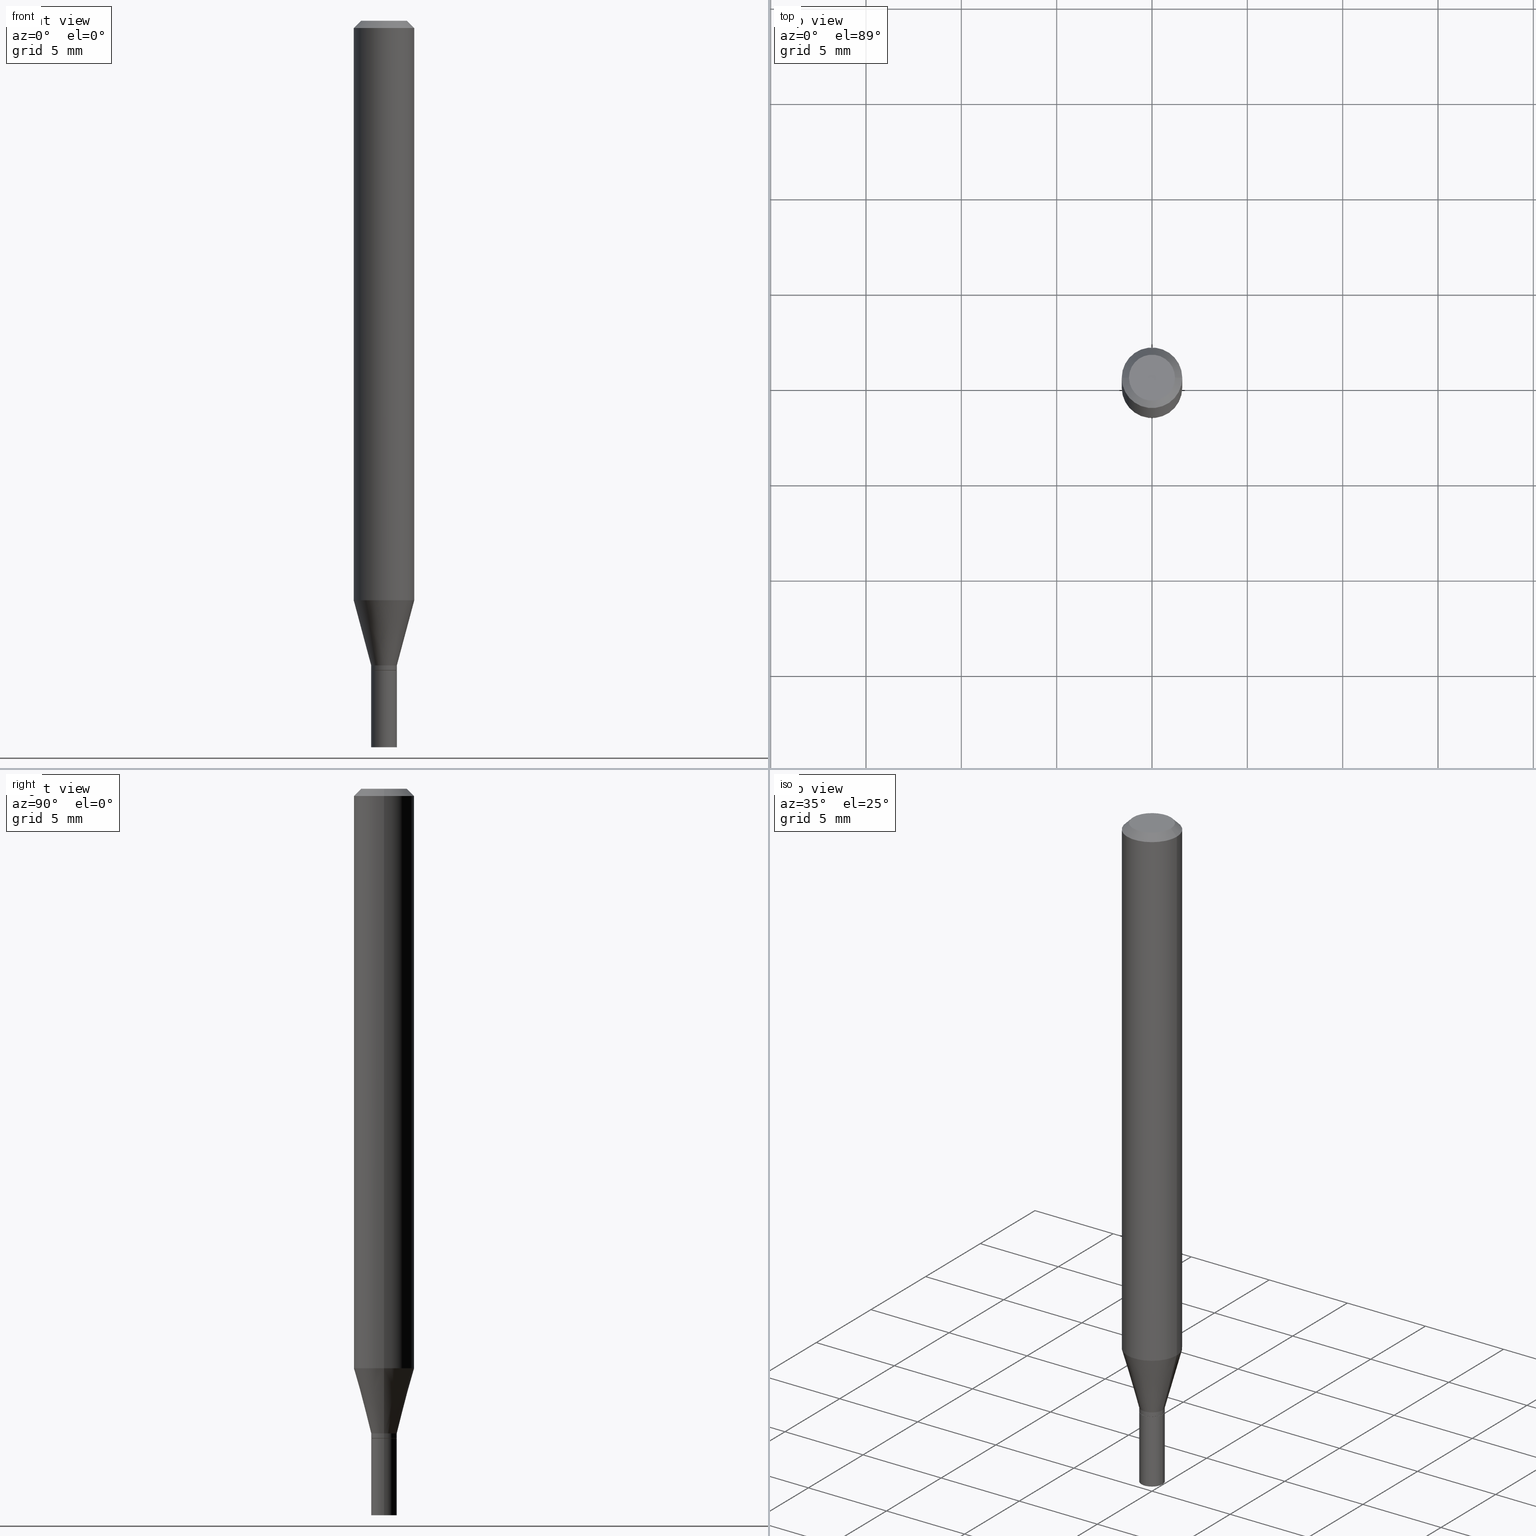
[diagram: canonical four-view strip — front | top / right | iso, engineering-drawing reading convention]
A machine part, canonical four-view strip (front | top / right | iso — engineering-drawing reading convention). The complete STEP part file that produces these views, byte-faithful:
ISO-10303-21;
HEADER;
FILE_DESCRIPTION (( 'STEP AP203' ),
    '1' );
FILE_NAME ('02448.STEP',
    '2024-03-18T20:39:29',
    ( '' ),
    ( '' ),
    'SwSTEP 2.0',
    'SolidWorks 2023',
    '' );
FILE_SCHEMA (( 'CONFIG_CONTROL_DESIGN' ));
ENDSEC;

DATA;
#1 = ORIENTED_EDGE ( 'NONE', *, *, #428, .T. ) ;
#2 =( LENGTH_UNIT ( ) NAMED_UNIT ( * ) SI_UNIT ( $, .METRE. ) );
#3 = ORGANIZATION ( 'UNSPECIFIED', 'UNSPECIFIED', '' ) ;
#4 = DATE_AND_TIME ( #184, #181 ) ;
#5 = ADVANCED_FACE ( 'NONE', ( #290 ), #124, .T. ) ;
#6 = CARTESIAN_POINT ( 'NONE',  ( 0.02649999999999992639, -4.832210172958911994E-15, -1.331000000000000183 ) ) ;
#7 = LINE ( 'NONE', #407, #211 ) ;
#8 = ADVANCED_FACE ( 'NONE', ( #171 ), #186, .T. ) ;
#9 = LINE ( 'NONE', #81, #427 ) ;
#10 = AXIS2_PLACEMENT_3D ( 'NONE', #141, #282, #102 ) ;
#11 = COORDINATED_UNIVERSAL_TIME_OFFSET ( 5, 0, .BEHIND. ) ;
#12 = CARTESIAN_POINT ( 'NONE',  ( 0.000000000000000000, 0.000000000000000000, 0.000000000000000000 ) ) ;
#13 = PRODUCT ( '02448', '02448', '', ( #104 ) ) ;
#14 = CONICAL_SURFACE ( 'NONE', #39, 0.02649999999999992639, 0.2617993877991499074 ) ;
#15 = UNCERTAINTY_MEASURE_WITH_UNIT (LENGTH_MEASURE( 1.000000000000000082E-05 ), #259, 'distance_accuracy_value', 'NONE');
#16 = FACE_OUTER_BOUND ( 'NONE', #42, .T. ) ;
#17 = APPROVAL_STATUS ( 'not_yet_approved' ) ;
#18 = LINE ( 'NONE', #367, #363 ) ;
#19 = ADVANCED_FACE ( 'NONE', ( #198 ), #43, .T. ) ;
#20 = DIRECTION ( 'NONE',  ( 1.000000000000000000, -6.982962677686266711E-15, 4.876176775795935793E-29 ) ) ;
#21 = AXIS2_PLACEMENT_3D ( 'NONE', #266, #361, #115 ) ;
#22 = DIRECTION ( 'NONE',  ( -2.445468806185136597E-29, 3.491481338843145583E-15, 1.000000000000000000 ) ) ;
#23 = DIRECTION ( 'NONE',  ( 1.000000000000000000, -6.982962677686261189E-15, 0.000000000000000000 ) ) ;
#24 = PERSON_AND_ORGANIZATION_ROLE ( 'creator' ) ;
#25 = CARTESIAN_POINT ( 'NONE',  ( 0.06250000000000000000, -4.888073874380388472E-16, -0.01499999999999999944 ) ) ;
#26 = CYLINDRICAL_SURFACE ( 'NONE', #40, 0.06250000000000000000 ) ;
#27 = CARTESIAN_POINT ( 'NONE',  ( 0.02649999999999992639, -1.850485109586855413E-16, 1.292186845585919279E-30 ) ) ;
#28 = CARTESIAN_POINT ( 'NONE',  ( 0.06250000000000000000, -4.614502942346933576E-15, -1.196646170927520458 ) ) ;
#29 = CIRCLE ( 'NONE', #287, 0.06250000000000000000 ) ;
#30 = VERTEX_POINT ( 'NONE', #202 ) ;
#31 = CIRCLE ( 'NONE', #242, 0.02599999999999999534 ) ;
#32 = ORIENTED_EDGE ( 'NONE', *, *, #309, .F. ) ;
#33 = ORIENTED_EDGE ( 'NONE', *, *, #309, .T. ) ;
#34 = VERTEX_POINT ( 'NONE', #310 ) ;
#35 = ORIENTED_EDGE ( 'NONE', *, *, #391, .F. ) ;
#36 = DIRECTION ( 'NONE',  ( -2.445468806185136597E-29, 3.491481338843145583E-15, 1.000000000000000000 ) ) ;
#37 = VERTEX_POINT ( 'NONE', #25 ) ;
#38 = EDGE_LOOP ( 'NONE', ( #465, #226, #93, #32 ) ) ;
#39 = AXIS2_PLACEMENT_3D ( 'NONE', #353, #222, #217 ) ;
#40 = AXIS2_PLACEMENT_3D ( 'NONE', #249, #307, #374 ) ;
#41 = VERTEX_POINT ( 'NONE', #298 ) ;
#42 = EDGE_LOOP ( 'NONE', ( #394, #258, #35, #322 ) ) ;
#43 = CONICAL_SURFACE ( 'NONE', #345, 0.02599999999999999534, 0.7853981633974739252 ) ;
#44 = AXIS2_PLACEMENT_3D ( 'NONE', #151, #438, #443 ) ;
#45 = CYLINDRICAL_SURFACE ( 'NONE', #243, 0.02649999999999999925 ) ;
#46 = PRODUCT_DEFINITION_SHAPE ( 'NONE', 'NONE',  #153 ) ;
#47 = CYLINDRICAL_SURFACE ( 'NONE', #433, 0.02649999999999999925 ) ;
#48 = DIRECTION ( 'NONE',  ( 1.000000000000000000, -6.982962677686258822E-15, 0.000000000000000000 ) ) ;
#49 = CARTESIAN_POINT ( 'NONE',  ( -3.350520365439544480E-45, 4.783655101941405986E-31, 1.370093274943982539E-16 ) ) ;
#50 = DIRECTION ( 'NONE',  ( 1.000000000000000000, -6.982962677686265922E-15, 4.876176775795935232E-29 ) ) ;
#51 = COORDINATED_UNIVERSAL_TIME_OFFSET ( 5, 0, .BEHIND. ) ;
#52 = CC_DESIGN_SECURITY_CLASSIFICATION ( #224, ( #295 ) ) ;
#53 = DIRECTION ( 'NONE',  ( 1.000000000000000000, -6.982962677686260400E-15, 0.000000000000000000 ) ) ;
#54 = DIRECTION ( 'NONE',  ( -2.438088387897960049E-29, 3.491481338843145188E-15, 1.000000000000000000 ) ) ;
#55 = EDGE_CURVE ( 'NONE', #30, #429, #300, .T. ) ;
#56 = DIRECTION ( 'NONE',  ( 1.000000000000000000, -6.982962677686265922E-15, 4.876176775795935793E-29 ) ) ;
#57 = DIRECTION ( 'NONE',  ( -1.000000000000000000, 6.982962677686266711E-15, 0.000000000000000000 ) ) ;
#58 = DIRECTION ( 'NONE',  ( -1.000000000000000000, 6.982962677686265922E-15, -4.876176775795935793E-29 ) ) ;
#59 = CARTESIAN_POINT ( 'NONE',  ( -0.02649999999999999925, 1.882938249764265439E-16, -1.303517798917549926E-30 ) ) ;
#60 = APPROVAL_STATUS ( 'not_yet_approved' ) ;
#61 = DIRECTION ( 'NONE',  ( -2.445468806185136597E-29, 3.491481338843145583E-15, 1.000000000000000000 ) ) ;
#62 = CARTESIAN_POINT ( 'NONE',  ( 3.279373669094269136E-29, -4.682076475388659531E-15, -1.341000000000000192 ) ) ;
#63 = AXIS2_PLACEMENT_3D ( 'NONE', #343, #447, #247 ) ;
#64 = CARTESIAN_POINT ( 'NONE',  ( 3.279373669094269136E-29, -4.682076475388659531E-15, -1.341000000000000192 ) ) ;
#65 = DIRECTION ( 'NONE',  ( -2.445468806185136597E-29, 3.491481338843145583E-15, 1.000000000000000000 ) ) ;
#66 = CC_DESIGN_DATE_AND_TIME_ASSIGNMENT ( #168, #416, ( #153 ) ) ;
#67 = ORIENTED_EDGE ( 'NONE', *, *, #301, .F. ) ;
#68 = EDGE_CURVE ( 'NONE', #116, #399, #29, .T. ) ;
#69 = CARTESIAN_POINT ( 'NONE',  ( 3.279373669094269136E-29, -4.682076475388659531E-15, -1.341000000000000192 ) ) ;
#70 = CIRCLE ( 'NONE', #195, 0.04749999999999999362 ) ;
#71 = EDGE_LOOP ( 'NONE', ( #299, #67 ) ) ;
#72 = EDGE_CURVE ( 'NONE', #429, #220, #159, .T. ) ;
#73 = ORIENTED_EDGE ( 'NONE', *, *, #55, .F. ) ;
#74 = VERTEX_POINT ( 'NONE', #269 ) ;
#75 = ORIENTED_EDGE ( 'NONE', *, *, #444, .F. ) ;
#76 = ORIENTED_EDGE ( 'NONE', *, *, #409, .F. ) ;
#77 = AXIS2_PLACEMENT_3D ( 'NONE', #237, #170, #454 ) ;
#78 =( GEOMETRIC_REPRESENTATION_CONTEXT ( 3 ) GLOBAL_UNCERTAINTY_ASSIGNED_CONTEXT ( ( #15 ) ) GLOBAL_UNIT_ASSIGNED_CONTEXT ( ( #259, #327, #406 ) ) REPRESENTATION_CONTEXT ( 'NONE', 'WORKASPACE' ) );
#79 = DIRECTION ( 'NONE',  ( -2.445468806185136877E-29, 3.491481338843145188E-15, 1.000000000000000000 ) ) ;
#80 = DIRECTION ( 'NONE',  ( -2.445468806185136597E-29, 3.491481338843145583E-15, 1.000000000000000000 ) ) ;
#81 = CARTESIAN_POINT ( 'NONE',  ( 0.06250000000000000000, -4.811533449433679005E-16, -0.01499999999999999944 ) ) ;
#82 = AXIS2_PLACEMENT_3D ( 'NONE', #176, #426, #23 ) ;
#83 = APPROVAL_STATUS ( 'not_yet_approved' ) ;
#84 = FACE_OUTER_BOUND ( 'NONE', #435, .T. ) ;
#85 = DIRECTION ( 'NONE',  ( -2.445468806185136597E-29, 3.491481338843145583E-15, 1.000000000000000000 ) ) ;
#86 = CARTESIAN_POINT ( 'NONE',  ( 0.000000000000000000, 0.000000000000000000, 0.000000000000000000 ) ) ;
#87 = EDGE_CURVE ( 'NONE', #108, #349, #450, .T. ) ;
#88 = PERSON_AND_ORGANIZATION ( #137, #3 ) ;
#89 = ADVANCED_FACE ( 'NONE', ( #419 ), #371, .T. ) ;
#90 = AXIS2_PLACEMENT_3D ( 'NONE', #240, #364, #94 ) ;
#91 = VECTOR ( 'NONE', #380, 39.37007874015748143 ) ;
#92 = PERSON_AND_ORGANIZATION ( #137, #3 ) ;
#93 = ORIENTED_EDGE ( 'NONE', *, *, #232, .T. ) ;
#94 = DIRECTION ( 'NONE',  ( 1.000000000000000000, -6.982962677686258822E-15, 0.000000000000000000 ) ) ;
#95 = PERSON_AND_ORGANIZATION ( #137, #3 ) ;
#96 = SHAPE_DEFINITION_REPRESENTATION ( #46, #330 ) ;
#97 = ADVANCED_FACE ( 'NONE', ( #378 ), #410, .T. ) ;
#98 = PLANE ( 'NONE',  #442 ) ;
#99 = CARTESIAN_POINT ( 'NONE',  ( -3.350520365439544480E-45, 4.783655101941405986E-31, 1.370093274943982539E-16 ) ) ;
#100 = DIRECTION ( 'NONE',  ( -2.445468806185136877E-29, 3.491481338843145188E-15, 1.000000000000000000 ) ) ;
#101 = PLANE ( 'NONE',  #362 ) ;
#102 = DIRECTION ( 'NONE',  ( -1.000000000000000000, 6.982962677686265922E-15, -4.876176775795935793E-29 ) ) ;
#103 = VECTOR ( 'NONE', #144, 39.37007874015748143 ) ;
#104 = MECHANICAL_CONTEXT ( 'NONE', #160, 'mechanical' ) ;
#105 = ORIENTED_EDGE ( 'NONE', *, *, #55, .T. ) ;
#106 = ORIENTED_EDGE ( 'NONE', *, *, #391, .T. ) ;
#107 = ADVANCED_FACE ( 'NONE', ( #457 ), #47, .T. ) ;
#108 = VERTEX_POINT ( 'NONE', #305 ) ;
#109 = AXIS2_PLACEMENT_3D ( 'NONE', #256, #36, #183 ) ;
#110 = CIRCLE ( 'NONE', #188, 0.02649999999999992292 ) ;
#111 = ADVANCED_FACE ( 'NONE', ( #369 ), #45, .T. ) ;
#112 = ORIENTED_EDGE ( 'NONE', *, *, #87, .F. ) ;
#113 = LENGTH_MEASURE_WITH_UNIT ( LENGTH_MEASURE( 0.02539999999999999897 ), #2 );
#114 = EDGE_LOOP ( 'NONE', ( #377, #105, #403, #193 ) ) ;
#115 = DIRECTION ( 'NONE',  ( 1.000000000000000000, -6.982962677686260400E-15, 0.000000000000000000 ) ) ;
#116 = VERTEX_POINT ( 'NONE', #28 ) ;
#117 = DIRECTION ( 'NONE',  ( -2.445468806185136597E-29, 3.491481338843145583E-15, 1.000000000000000000 ) ) ;
#118 = ORIENTED_EDGE ( 'NONE', *, *, #324, .T. ) ;
#119 = AXIS2_PLACEMENT_3D ( 'NONE', #175, #139, #212 ) ;
#120 = DIRECTION ( 'NONE',  ( -2.445468806185136597E-29, 3.491481338843145583E-15, 1.000000000000000000 ) ) ;
#121 = ORIENTED_EDGE ( 'NONE', *, *, #409, .T. ) ;
#122 = PRODUCT_RELATED_PRODUCT_CATEGORY ( 'detail', '', ( #13 ) ) ;
#123 = CARTESIAN_POINT ( 'NONE',  ( 3.668203209277705088E-31, -5.237222008264718399E-17, -0.01499999999999999944 ) ) ;
#124 = CYLINDRICAL_SURFACE ( 'NONE', #334, 0.02649999999999992639 ) ;
#125 = EDGE_CURVE ( 'NONE', #349, #108, #311, .T. ) ;
#126 = DIRECTION ( 'NONE',  ( -2.445468806185136877E-29, 3.491481338843145188E-15, 1.000000000000000000 ) ) ;
#127 = DIRECTION ( 'NONE',  ( -2.445468806185136877E-29, 3.491481338843145188E-15, 1.000000000000000000 ) ) ;
#128 = DIRECTION ( 'NONE',  ( -2.445468806185136597E-29, 3.491481338843145583E-15, 1.000000000000000000 ) ) ;
#129 = VECTOR ( 'NONE', #126, 39.37007874015748143 ) ;
#130 = LOCAL_TIME ( 16, 39, 29.00000000000000000, #284 ) ;
#131 = PERSON_AND_ORGANIZATION_ROLE ( 'design_supplier' ) ;
#132 = CARTESIAN_POINT ( 'NONE',  ( -0.06250000000000000000, 4.440892098500626162E-16, -3.074334431409316114E-30 ) ) ;
#133 = APPROVAL_DATE_TIME ( #138, #453 ) ;
#134 = DIRECTION ( 'NONE',  ( 0.7071067811865656694, -2.468850131082446387E-15, 0.7071067811865294761 ) ) ;
#135 = APPLICATION_PROTOCOL_DEFINITION ( 'international standard', 'config_control_design', 1994, #332 ) ;
#136 = DIRECTION ( 'NONE',  ( -2.445468806185136597E-29, 3.491481338843145583E-15, 1.000000000000000000 ) ) ;
#137 = PERSON ( 'UNSPECIFIED', 'UNSPECIFIED', 'UNSPECIFIED', ('UNSPECIFIED'), ('UNSPECIFIED'), ('UNSPECIFIED') ) ;
#138 = DATE_AND_TIME ( #254, #130 ) ;
#139 = DIRECTION ( 'NONE',  ( 0.000000000000000000, 0.000000000000000000, 1.000000000000000000 ) ) ;
#140 = DIRECTION ( 'NONE',  ( -2.445468806185136597E-29, 3.491481338843145583E-15, 1.000000000000000000 ) ) ;
#141 = CARTESIAN_POINT ( 'NONE',  ( 3.316907271900976096E-16, 0.04749999999999999362, -9.734069984785028182E-17 ) ) ;
#142 = CC_DESIGN_APPROVAL ( #204, ( #224 ) ) ;
#143 = ADVANCED_FACE ( 'NONE', ( #323 ), #14, .T. ) ;
#144 = DIRECTION ( 'NONE',  ( -2.445468806185136877E-29, 3.491481338843145188E-15, 1.000000000000000000 ) ) ;
#145 = ORIENTED_EDGE ( 'NONE', *, *, #125, .F. ) ;
#146 = ORIENTED_EDGE ( 'NONE', *, *, #344, .T. ) ;
#147 = ORIENTED_EDGE ( 'NONE', *, *, #231, .F. ) ;
#148 = AXIS2_PLACEMENT_3D ( 'NONE', #123, #120, #333 ) ;
#149 = CARTESIAN_POINT ( 'NONE',  ( -0.02649999999999992292, -4.492036909742812495E-15, -1.340500000000000469 ) ) ;
#150 = EDGE_LOOP ( 'NONE', ( #182, #292, #158, #390 ) ) ;
#151 = CARTESIAN_POINT ( 'NONE',  ( 2.926360883044138788E-29, -4.178067774991542695E-15, -1.196646170927520458 ) ) ;
#152 = ORIENTED_EDGE ( 'NONE', *, *, #301, .T. ) ;
#153 = PRODUCT_DEFINITION ( 'UNKNOWN', '', #295, #359 ) ;
#154 = ORIENTED_EDGE ( 'NONE', *, *, #87, .T. ) ;
#155 = EDGE_CURVE ( 'NONE', #264, #108, #178, .T. ) ;
#156 = CIRCLE ( 'NONE', #417, 0.06250000000000000000 ) ;
#157 = APPROVAL_PERSON_ORGANIZATION ( #379, #328, #360 ) ;
#158 = ORIENTED_EDGE ( 'NONE', *, *, #231, .T. ) ;
#159 = LINE ( 'NONE', #302, #129 ) ;
#160 = APPLICATION_CONTEXT ( 'configuration controlled 3d designs of mechanical parts and assemblies' ) ;
#161 = DIRECTION ( 'NONE',  ( -2.445468806185136597E-29, 3.491481338843145583E-15, 1.000000000000000000 ) ) ;
#162 = DIRECTION ( 'NONE',  ( 1.000000000000000000, -6.982962677686266711E-15, 4.876176775795935793E-29 ) ) ;
#163 = CIRCLE ( 'NONE', #109, 0.02649999999999999925 ) ;
#164 = LOCAL_TIME ( 16, 39, 29.00000000000000000, #392 ) ;
#165 = PERSON_AND_ORGANIZATION ( #137, #3 ) ;
#166 = DIRECTION ( 'NONE',  ( 2.438088387897960049E-29, -3.491481338843145188E-15, -1.000000000000000000 ) ) ;
#167 = CYLINDRICAL_SURFACE ( 'NONE', #63, 0.02649999999999992639 ) ;
#168 = DATE_AND_TIME ( #461, #164 ) ;
#169 = ORIENTED_EDGE ( 'NONE', *, *, #337, .T. ) ;
#170 = DIRECTION ( 'NONE',  ( -2.445468806185136597E-29, 3.491481338843145583E-15, 1.000000000000000000 ) ) ;
#171 = FACE_OUTER_BOUND ( 'NONE', #329, .T. ) ;
#172 = PERSON_AND_ORGANIZATION ( #137, #3 ) ;
#173 = CIRCLE ( 'NONE', #82, 0.02649999999999992292 ) ;
#174 = CIRCLE ( 'NONE', #434, 0.02649999999999999925 ) ;
#175 = CARTESIAN_POINT ( 'NONE',  ( 0.000000000000000000, 0.000000000000000000, 0.000000000000000000 ) ) ;
#176 = CARTESIAN_POINT ( 'NONE',  ( 3.278150934691176334E-29, -4.680330734719238028E-15, -1.340500000000000469 ) ) ;
#177 = CARTESIAN_POINT ( 'NONE',  ( 3.279373669094269136E-29, -4.682076475388659531E-15, -1.341000000000000192 ) ) ;
#178 = LINE ( 'NONE', #285, #103 ) ;
#179 = DIRECTION ( 'NONE',  ( -2.445468806185136877E-29, 3.491481338843145188E-15, 1.000000000000000000 ) ) ;
#180 = AXIS2_PLACEMENT_3D ( 'NONE', #373, #271, #57 ) ;
#181 = LOCAL_TIME ( 16, 39, 29.00000000000000000, #191 ) ;
#182 = ORIENTED_EDGE ( 'NONE', *, *, #337, .F. ) ;
#183 = DIRECTION ( 'NONE',  ( 1.000000000000000000, -6.982962677686277755E-15, 0.000000000000000000 ) ) ;
#184 = CALENDAR_DATE ( 2024, 18, 3 ) ;
#185 = ORIENTED_EDGE ( 'NONE', *, *, #192, .F. ) ;
#186 = CONICAL_SURFACE ( 'NONE', #456, 0.06250000000000000000, 0.7853981633974438381 ) ;
#187 = ORIENTED_EDGE ( 'NONE', *, *, #68, .F. ) ;
#188 = AXIS2_PLACEMENT_3D ( 'NONE', #408, #80, #260 ) ;
#189 = ORIENTED_EDGE ( 'NONE', *, *, #445, .T. ) ;
#190 = ORIENTED_EDGE ( 'NONE', *, *, #155, .F. ) ;
#191 = COORDINATED_UNIVERSAL_TIME_OFFSET ( 5, 0, .BEHIND. ) ;
#192 = EDGE_CURVE ( 'NONE', #264, #41, #163, .T. ) ;
#193 = ORIENTED_EDGE ( 'NONE', *, *, #234, .F. ) ;
#194 = ADVANCED_FACE ( 'NONE', ( #396 ), #101, .F. ) ;
#195 = AXIS2_PLACEMENT_3D ( 'NONE', #99, #213, #387 ) ;
#196 = ADVANCED_FACE ( 'NONE', ( #306 ), #98, .F. ) ;
#197 = APPROVAL_ROLE ( '' ) ;
#198 = FACE_OUTER_BOUND ( 'NONE', #464, .T. ) ;
#199 = LINE ( 'NONE', #59, #230 ) ;
#200 = CC_DESIGN_APPROVAL ( #328, ( #153 ) ) ;
#201 = DIRECTION ( 'NONE',  ( 1.000000000000000000, -6.982962677686265922E-15, 4.876176775795935793E-29 ) ) ;
#202 = CARTESIAN_POINT ( 'NONE',  ( -0.02599999999999999534, -4.494686136916922907E-15, -1.341000000000000192 ) ) ;
#203 = CARTESIAN_POINT ( 'NONE',  ( 3.668203209277705088E-31, -5.237222008264718399E-17, -0.01499999999999999944 ) ) ;
#204 = APPROVAL ( #60, 'UNSPECIFIED' ) ;
#205 = DIRECTION ( 'NONE',  ( -2.445468806185136597E-29, 3.491481338843145583E-15, 1.000000000000000000 ) ) ;
#206 = DIRECTION ( 'NONE',  ( 1.000000000000000000, -6.982962677686267499E-15, 4.852736867747366768E-29 ) ) ;
#207 = CALENDAR_DATE ( 2024, 18, 3 ) ;
#208 = ADVANCED_FACE ( 'NONE', ( #210 ), #313, .F. ) ;
#209 = MANIFOLD_SOLID_BREP ( 'Body-Move/Copy2[1]', #235 ) ;
#210 = FACE_OUTER_BOUND ( 'NONE', #71, .T. ) ;
#211 = VECTOR ( 'NONE', #79, 39.37007874015748143 ) ;
#212 = DIRECTION ( 'NONE',  ( 1.000000000000000000, 0.000000000000000000, 0.000000000000000000 ) ) ;
#213 = DIRECTION ( 'NONE',  ( -2.445468806185136597E-29, 3.491481338843145583E-15, 1.000000000000000000 ) ) ;
#214 = EDGE_CURVE ( 'NONE', #325, #30, #31, .T. ) ;
#215 = DIRECTION ( 'NONE',  ( -2.445468806185136597E-29, 3.491481338843145583E-15, 1.000000000000000000 ) ) ;
#216 = DIRECTION ( 'NONE',  ( -2.438088387897960049E-29, 3.491481338843145188E-15, 1.000000000000000000 ) ) ;
#217 = DIRECTION ( 'NONE',  ( 1.000000000000000000, -6.982962677686260400E-15, 0.000000000000000000 ) ) ;
#218 = DIRECTION ( 'NONE',  ( -1.000000000000000000, 6.982962677686266711E-15, 0.000000000000000000 ) ) ;
#219 = MANIFOLD_SOLID_BREP ( 'Body-Move/Copy2[2]', #385 ) ;
#220 = VERTEX_POINT ( 'NONE', #273 ) ;
#221 = ORIENTED_EDGE ( 'NONE', *, *, #125, .T. ) ;
#222 = DIRECTION ( 'NONE',  ( -2.445468806185136597E-29, 3.491481338843145583E-15, 1.000000000000000000 ) ) ;
#223 = VECTOR ( 'NONE', #134, 39.37007874015748143 ) ;
#224 = SECURITY_CLASSIFICATION ( '', '', #279 ) ;
#225 = ORIENTED_EDGE ( 'NONE', *, *, #250, .F. ) ;
#226 = ORIENTED_EDGE ( 'NONE', *, *, #262, .T. ) ;
#227 = CARTESIAN_POINT ( 'NONE',  ( 3.279373669094269136E-29, -4.682076475388659531E-15, -1.341000000000000192 ) ) ;
#228 = ORIENTED_EDGE ( 'NONE', *, *, #352, .F. ) ;
#229 = EDGE_LOOP ( 'NONE', ( #154, #221 ) ) ;
#230 = VECTOR ( 'NONE', #100, 39.37007874015748143 ) ;
#231 = EDGE_CURVE ( 'NONE', #37, #34, #156, .T. ) ;
#232 = EDGE_CURVE ( 'NONE', #356, #293, #389, .T. ) ;
#233 = LINE ( 'NONE', #422, #91 ) ;
#234 = EDGE_CURVE ( 'NONE', #325, #356, #339, .T. ) ;
#235 = CLOSED_SHELL ( 'NONE', ( #111, #196, #107, #194 ) ) ;
#236 = AXIS2_PLACEMENT_3D ( 'NONE', #227, #117, #355 ) ;
#237 = CARTESIAN_POINT ( 'NONE',  ( 3.279373669094269136E-29, -4.682076475388659531E-15, -1.341000000000000192 ) ) ;
#238 = CARTESIAN_POINT ( 'NONE',  ( 3.254918981032417030E-29, -4.647161662000227094E-15, -1.331000000000000183 ) ) ;
#239 = CARTESIAN_POINT ( 'NONE',  ( -0.02649999999999999925, -4.771355416850261743E-15, -1.341000000000000192 ) ) ;
#240 = CARTESIAN_POINT ( 'NONE',  ( 3.279373669094269136E-29, -4.682076475388659531E-15, -1.341000000000000192 ) ) ;
#241 = ADVANCED_FACE ( 'NONE', ( #420 ), #437, .T. ) ;
#242 = AXIS2_PLACEMENT_3D ( 'NONE', #177, #140, #460 ) ;
#243 = AXIS2_PLACEMENT_3D ( 'NONE', #12, #448, #162 ) ;
#244 = CC_DESIGN_PERSON_AND_ORGANIZATION_ASSIGNMENT ( #421, #414, ( #224 ) ) ;
#245 = LOCAL_TIME ( 16, 39, 29.00000000000000000, #11 ) ;
#246 = APPROVAL_ROLE ( '' ) ;
#247 = DIRECTION ( 'NONE',  ( 1.000000000000000000, -6.982962677686265922E-15, 4.876176775795935232E-29 ) ) ;
#248 = PERSON_AND_ORGANIZATION_ROLE ( 'design_owner' ) ;
#249 = CARTESIAN_POINT ( 'NONE',  ( 0.000000000000000000, 0.000000000000000000, 0.000000000000000000 ) ) ;
#250 = EDGE_CURVE ( 'NONE', #413, #74, #70, .T. ) ;
#251 = DATE_AND_TIME ( #381, #386 ) ;
#252 = CC_DESIGN_PERSON_AND_ORGANIZATION_ASSIGNMENT ( #462, #24, ( #153 ) ) ;
#253 = CIRCLE ( 'NONE', #44, 0.06250000000000000000 ) ;
#254 = CALENDAR_DATE ( 2024, 18, 3 ) ;
#255 = EDGE_LOOP ( 'NONE', ( #185, #350 ) ) ;
#256 = CARTESIAN_POINT ( 'NONE',  ( 3.668203209277704895E-29, -5.237222008264718177E-15, -1.500000000000000222 ) ) ;
#257 = ORIENTED_EDGE ( 'NONE', *, *, #304, .F. ) ;
#258 = ORIENTED_EDGE ( 'NONE', *, *, #72, .T. ) ;
#259 =( CONVERSION_BASED_UNIT ( 'INCH', #113 ) LENGTH_UNIT ( ) NAMED_UNIT ( #432 ) );
#260 = DIRECTION ( 'NONE',  ( 1.000000000000000000, -6.982962677686261189E-15, 0.000000000000000000 ) ) ;
#261 = EDGE_LOOP ( 'NONE', ( #75, #33, #118, #257 ) ) ;
#262 = EDGE_CURVE ( 'NONE', #429, #356, #173, .T. ) ;
#263 = ADVANCED_FACE ( 'NONE', ( #415 ), #26, .T. ) ;
#264 = VERTEX_POINT ( 'NONE', #358 ) ;
#265 = AXIS2_PLACEMENT_3D ( 'NONE', #49, #22, #206 ) ;
#266 = CARTESIAN_POINT ( 'NONE',  ( 3.254918981032417030E-29, -4.647161662000227094E-15, -1.331000000000000183 ) ) ;
#267 = CC_DESIGN_PERSON_AND_ORGANIZATION_ASSIGNMENT ( #88, #131, ( #295 ) ) ;
#268 = ORIENTED_EDGE ( 'NONE', *, *, #304, .T. ) ;
#269 = CARTESIAN_POINT ( 'NONE',  ( 0.04749999999999999362, -4.035134999187576158E-16, 1.370093274944008177E-16 ) ) ;
#270 = APPROVAL_PERSON_ORGANIZATION ( #92, #453, #197 ) ;
#271 = DIRECTION ( 'NONE',  ( 2.445468806185136597E-29, -3.491481338843145583E-15, -1.000000000000000000 ) ) ;
#272 = DATE_AND_TIME ( #207, #245 ) ;
#273 = CARTESIAN_POINT ( 'NONE',  ( -0.02649999999999992639, -4.096423201082640425E-15, -1.331000000000000183 ) ) ;
#274 = LINE ( 'NONE', #375, #451 ) ;
#275 = ADVANCED_FACE ( 'NONE', ( #331 ), #459, .F. ) ;
#276 = AXIS2_PLACEMENT_3D ( 'NONE', #289, #136, #452 ) ;
#277 = CIRCLE ( 'NONE', #265, 0.04749999999999999362 ) ;
#278 = CARTESIAN_POINT ( 'NONE',  ( 2.926360883044138788E-29, -4.178067774991542695E-15, -1.196646170927520458 ) ) ;
#279 = SECURITY_CLASSIFICATION_LEVEL ( 'unclassified' ) ;
#280 = DIRECTION ( 'NONE',  ( -2.445468806185136597E-29, 3.491481338843145583E-15, 1.000000000000000000 ) ) ;
#281 = EDGE_CURVE ( 'NONE', #74, #37, #9, .T. ) ;
#282 = DIRECTION ( 'NONE',  ( 2.438088387897960049E-29, -3.491481338843145188E-15, -1.000000000000000000 ) ) ;
#283 = APPLICATION_PROTOCOL_DEFINITION ( 'international standard', 'config_control_design', 1994, #160 ) ;
#284 = COORDINATED_UNIVERSAL_TIME_OFFSET ( 5, 0, .BEHIND. ) ;
#285 = CARTESIAN_POINT ( 'NONE',  ( 0.02649999999999999925, -1.850485109586860590E-16, 1.292186845585922957E-30 ) ) ;
#286 = DIRECTION ( 'NONE',  ( 2.445468806185136597E-29, -3.491481338843145583E-15, -1.000000000000000000 ) ) ;
#287 = AXIS2_PLACEMENT_3D ( 'NONE', #278, #61, #341 ) ;
#288 = AXIS2_PLACEMENT_3D ( 'NONE', #365, #161, #393 ) ;
#289 = CARTESIAN_POINT ( 'NONE',  ( 0.000000000000000000, 0.000000000000000000, 0.000000000000000000 ) ) ;
#290 = FACE_OUTER_BOUND ( 'NONE', #38, .T. ) ;
#291 = ORIENTED_EDGE ( 'NONE', *, *, #68, .T. ) ;
#292 = ORIENTED_EDGE ( 'NONE', *, *, #281, .T. ) ;
#293 = VERTEX_POINT ( 'NONE', #6 ) ;
#294 = VECTOR ( 'NONE', #179, 39.37007874015748143 ) ;
#295 = PRODUCT_DEFINITION_FORMATION_WITH_SPECIFIED_SOURCE ( 'ANY', '', #13, .NOT_KNOWN. ) ;
#296 = EDGE_LOOP ( 'NONE', ( #351, #146, #112, #190 ) ) ;
#297 = ORIENTED_EDGE ( 'NONE', *, *, #234, .T. ) ;
#298 = CARTESIAN_POINT ( 'NONE',  ( -0.02649999999999999925, -4.771355416850261743E-15, -1.500000000000000222 ) ) ;
#299 = ORIENTED_EDGE ( 'NONE', *, *, #214, .F. ) ;
#300 = LINE ( 'NONE', #335, #404 ) ;
#301 = EDGE_CURVE ( 'NONE', #30, #325, #312, .T. ) ;
#302 = CARTESIAN_POINT ( 'NONE',  ( -0.02649999999999992639, 1.882938249764260262E-16, -1.303517798917546247E-30 ) ) ;
#303 = CIRCLE ( 'NONE', #148, 0.06250000000000000000 ) ;
#304 = EDGE_CURVE ( 'NONE', #399, #116, #253, .T. ) ;
#305 = CARTESIAN_POINT ( 'NONE',  ( 0.02649999999999999925, -4.867124986347346010E-15, -1.341000000000000192 ) ) ;
#306 = FACE_OUTER_BOUND ( 'NONE', #255, .T. ) ;
#307 = DIRECTION ( 'NONE',  ( -2.445468806185136597E-29, 3.491481338843145583E-15, 1.000000000000000000 ) ) ;
#308 = PERSON_AND_ORGANIZATION_ROLE ( 'creator' ) ;
#309 = EDGE_CURVE ( 'NONE', #220, #293, #397, .T. ) ;
#310 = CARTESIAN_POINT ( 'NONE',  ( -0.06250000000000000000, -1.671130787687032468E-15, -0.01499999999999999944 ) ) ;
#311 = CIRCLE ( 'NONE', #395, 0.02649999999999999925 ) ;
#312 = CIRCLE ( 'NONE', #236, 0.02599999999999999534 ) ;
#313 = PLANE ( 'NONE',  #425 ) ;
#314 = DIRECTION ( 'NONE',  ( 1.000000000000000000, -6.982962677686266711E-15, 0.000000000000000000 ) ) ;
#315 = CARTESIAN_POINT ( 'NONE',  ( 1.850485109587188213E-16, 0.02649999999999531550, -1.341000000000000192 ) ) ;
#316 = EDGE_CURVE ( 'NONE', #356, #429, #110, .T. ) ;
#317 = CARTESIAN_POINT ( 'NONE',  ( -0.06250000000000000000, -3.733978565141479290E-15, -1.196646170927520458 ) ) ;
#318 = CARTESIAN_POINT ( 'NONE',  ( 0.02599999999999999534, -4.863633505008502214E-15, -1.341000000000000192 ) ) ;
#319 = EDGE_CURVE ( 'NONE', #413, #34, #233, .T. ) ;
#320 = ORIENTED_EDGE ( 'NONE', *, *, #319, .T. ) ;
#321 = CC_DESIGN_PERSON_AND_ORGANIZATION_ASSIGNMENT ( #165, #308, ( #295 ) ) ;
#322 = ORIENTED_EDGE ( 'NONE', *, *, #232, .F. ) ;
#323 = FACE_OUTER_BOUND ( 'NONE', #261, .T. ) ;
#324 = EDGE_CURVE ( 'NONE', #293, #116, #274, .T. ) ;
#325 = VERTEX_POINT ( 'NONE', #370 ) ;
#326 = EDGE_LOOP ( 'NONE', ( #402, #189, #436, #145 ) ) ;
#327 =( NAMED_UNIT ( * ) PLANE_ANGLE_UNIT ( ) SI_UNIT ( $, .RADIAN. ) );
#328 = APPROVAL ( #17, 'UNSPECIFIED' ) ;
#329 = EDGE_LOOP ( 'NONE', ( #431, #225, #320, #121 ) ) ;
#330 = ADVANCED_BREP_SHAPE_REPRESENTATION ( '02448', ( #209, #219, #119 ), #78 ) ;
#331 = FACE_OUTER_BOUND ( 'NONE', #446, .T. ) ;
#332 = APPLICATION_CONTEXT ( 'configuration controlled 3d designs of mechanical parts and assemblies' ) ;
#333 = DIRECTION ( 'NONE',  ( 1.000000000000000000, -6.982962677686266711E-15, 0.000000000000000000 ) ) ;
#334 = AXIS2_PLACEMENT_3D ( 'NONE', #86, #128, #50 ) ;
#335 = CARTESIAN_POINT ( 'NONE',  ( -0.02599999999999999534, -4.497335364091034108E-15, -1.341000000000000192 ) ) ;
#336 = CARTESIAN_POINT ( 'NONE',  ( 0.000000000000000000, 0.000000000000000000, 0.000000000000000000 ) ) ;
#337 = EDGE_CURVE ( 'NONE', #74, #413, #277, .T. ) ;
#338 = APPROVAL_PERSON_ORGANIZATION ( #172, #204, #246 ) ;
#339 = LINE ( 'NONE', #318, #223 ) ;
#340 = APPROVAL_DATE_TIME ( #272, #204 ) ;
#341 = DIRECTION ( 'NONE',  ( 1.000000000000000000, -6.982962677686270655E-15, 0.000000000000000000 ) ) ;
#342 = CIRCLE ( 'NONE', #288, 0.02649999999999992639 ) ;
#343 = CARTESIAN_POINT ( 'NONE',  ( 0.000000000000000000, 0.000000000000000000, 0.000000000000000000 ) ) ;
#344 = EDGE_CURVE ( 'NONE', #41, #349, #199, .T. ) ;
#345 = AXIS2_PLACEMENT_3D ( 'NONE', #62, #85, #48 ) ;
#346 = ADVANCED_FACE ( 'NONE', ( #16 ), #167, .T. ) ;
#347 = CONICAL_SURFACE ( 'NONE', #405, 0.02649999999999992639, 0.2617993877991499074 ) ;
#348 = ORIENTED_EDGE ( 'NONE', *, *, #250, .T. ) ;
#349 = VERTEX_POINT ( 'NONE', #239 ) ;
#350 = ORIENTED_EDGE ( 'NONE', *, *, #445, .F. ) ;
#351 = ORIENTED_EDGE ( 'NONE', *, *, #192, .T. ) ;
#352 = EDGE_CURVE ( 'NONE', #399, #34, #372, .T. ) ;
#353 = CARTESIAN_POINT ( 'NONE',  ( 3.254918981032417030E-29, -4.647161662000227094E-15, -1.331000000000000183 ) ) ;
#354 = CARTESIAN_POINT ( 'NONE',  ( -0.04749999999999999362, 3.578768372314212971E-16, 1.370093274943958627E-16 ) ) ;
#355 = DIRECTION ( 'NONE',  ( 1.000000000000000000, -6.982962677686258822E-15, 0.000000000000000000 ) ) ;
#356 = VERTEX_POINT ( 'NONE', #412 ) ;
#357 = ORIENTED_EDGE ( 'NONE', *, *, #352, .T. ) ;
#358 = CARTESIAN_POINT ( 'NONE',  ( 0.02649999999999999925, -5.422270519223404655E-15, -1.500000000000000222 ) ) ;
#359 = DESIGN_CONTEXT ( 'detailed design', #332, 'design' ) ;
#360 = APPROVAL_ROLE ( '' ) ;
#361 = DIRECTION ( 'NONE',  ( -2.445468806185136597E-29, 3.491481338843145583E-15, 1.000000000000000000 ) ) ;
#362 = AXIS2_PLACEMENT_3D ( 'NONE', #315, #166, #58 ) ;
#363 = VECTOR ( 'NONE', #449, 39.37007874015748854 ) ;
#364 = DIRECTION ( 'NONE',  ( -2.445468806185136597E-29, 3.491481338843145583E-15, 1.000000000000000000 ) ) ;
#365 = CARTESIAN_POINT ( 'NONE',  ( 3.254918981032417030E-29, -4.647161662000227094E-15, -1.331000000000000183 ) ) ;
#366 = DATE_TIME_ROLE ( 'classification_date' ) ;
#367 = CARTESIAN_POINT ( 'NONE',  ( -0.02649999999999992639, -4.458867837023800771E-15, -1.331000000000000183 ) ) ;
#368 = DIRECTION ( 'NONE',  ( -2.445468806185136597E-29, 3.491481338843145583E-15, 1.000000000000000000 ) ) ;
#369 = FACE_OUTER_BOUND ( 'NONE', #296, .T. ) ;
#370 = CARTESIAN_POINT ( 'NONE',  ( 0.02599999999999999534, -4.863633505008502214E-15, -1.341000000000000192 ) ) ;
#371 = CONICAL_SURFACE ( 'NONE', #90, 0.02599999999999999534, 0.7853981633974739252 ) ;
#372 = LINE ( 'NONE', #132, #411 ) ;
#373 = CARTESIAN_POINT ( 'NONE',  ( 3.668203209277705088E-31, -5.237222008264718399E-17, -0.01499999999999999944 ) ) ;
#374 = DIRECTION ( 'NONE',  ( 1.000000000000000000, -6.982962677686266711E-15, 4.876176775795935793E-29 ) ) ;
#375 = CARTESIAN_POINT ( 'NONE',  ( 0.02649999999999992639, -4.832210172958911994E-15, -1.331000000000000183 ) ) ;
#376 = ADVANCED_FACE ( 'NONE', ( #84 ), #347, .T. ) ;
#377 = ORIENTED_EDGE ( 'NONE', *, *, #214, .T. ) ;
#378 = FACE_OUTER_BOUND ( 'NONE', #150, .T. ) ;
#379 = PERSON_AND_ORGANIZATION ( #137, #3 ) ;
#380 = DIRECTION ( 'NONE',  ( -0.7071067811865443531, 2.468850131082223534E-15, -0.7071067811865506814 ) ) ;
#381 = CALENDAR_DATE ( 2024, 18, 3 ) ;
#382 = CARTESIAN_POINT ( 'NONE',  ( 3.668203209277704895E-29, -5.237222008264718177E-15, -1.500000000000000222 ) ) ;
#383 = CC_DESIGN_DATE_AND_TIME_ASSIGNMENT ( #251, #366, ( #224 ) ) ;
#384 = CARTESIAN_POINT ( 'NONE',  ( 3.576687321579069994E-29, -5.368277968210015545E-15, -1.500000000000000222 ) ) ;
#385 = CLOSED_SHELL ( 'NONE', ( #346, #89, #97, #241, #376, #143, #263, #8, #275, #208, #19, #5 ) ) ;
#386 = LOCAL_TIME ( 16, 39, 29.00000000000000000, #51 ) ;
#387 = DIRECTION ( 'NONE',  ( 1.000000000000000000, -6.982962677686267499E-15, 4.852736867747366768E-29 ) ) ;
#388 = CC_DESIGN_PERSON_AND_ORGANIZATION_ASSIGNMENT ( #95, #248, ( #13 ) ) ;
#389 = LINE ( 'NONE', #27, #294 ) ;
#390 = ORIENTED_EDGE ( 'NONE', *, *, #319, .F. ) ;
#391 = EDGE_CURVE ( 'NONE', #293, #220, #342, .T. ) ;
#392 = COORDINATED_UNIVERSAL_TIME_OFFSET ( 5, 0, .BEHIND. ) ;
#393 = DIRECTION ( 'NONE',  ( 1.000000000000000000, -6.982962677686260400E-15, 0.000000000000000000 ) ) ;
#394 = ORIENTED_EDGE ( 'NONE', *, *, #316, .T. ) ;
#395 = AXIS2_PLACEMENT_3D ( 'NONE', #69, #65, #424 ) ;
#396 = FACE_OUTER_BOUND ( 'NONE', #229, .T. ) ;
#397 = CIRCLE ( 'NONE', #21, 0.02649999999999992639 ) ;
#398 = ORIENTED_EDGE ( 'NONE', *, *, #444, .T. ) ;
#399 = VERTEX_POINT ( 'NONE', #317 ) ;
#400 = DIRECTION ( 'NONE',  ( 0.7071067811865443531, -7.319954787623245001E-15, -0.7071067811865506814 ) ) ;
#401 = APPROVAL_DATE_TIME ( #4, #328 ) ;
#402 = ORIENTED_EDGE ( 'NONE', *, *, #344, .F. ) ;
#403 = ORIENTED_EDGE ( 'NONE', *, *, #316, .F. ) ;
#404 = VECTOR ( 'NONE', #440, 39.37007874015748143 ) ;
#405 = AXIS2_PLACEMENT_3D ( 'NONE', #238, #368, #53 ) ;
#406 =( NAMED_UNIT ( * ) SI_UNIT ( $, .STERADIAN. ) SOLID_ANGLE_UNIT ( ) );
#407 = CARTESIAN_POINT ( 'NONE',  ( 0.06250000000000000000, -4.364351673553916694E-16, 3.047610484872459871E-30 ) ) ;
#408 = CARTESIAN_POINT ( 'NONE',  ( 3.278150934691176334E-29, -4.680330734719238028E-15, -1.340500000000000469 ) ) ;
#409 = EDGE_CURVE ( 'NONE', #34, #37, #303, .T. ) ;
#410 = CONICAL_SURFACE ( 'NONE', #180, 0.06250000000000000000, 0.7853981633974438381 ) ;
#411 = VECTOR ( 'NONE', #127, 39.37007874015748143 ) ;
#412 = CARTESIAN_POINT ( 'NONE',  ( 0.02649999999999992292, -4.865379245677923717E-15, -1.340500000000000469 ) ) ;
#413 = VERTEX_POINT ( 'NONE', #354 ) ;
#414 = PERSON_AND_ORGANIZATION_ROLE ( 'classification_officer' ) ;
#415 = FACE_OUTER_BOUND ( 'NONE', #466, .T. ) ;
#416 = DATE_TIME_ROLE ( 'creation_date' ) ;
#417 = AXIS2_PLACEMENT_3D ( 'NONE', #203, #215, #314 ) ;
#418 = CC_DESIGN_APPROVAL ( #453, ( #295 ) ) ;
#419 = FACE_OUTER_BOUND ( 'NONE', #114, .T. ) ;
#420 = FACE_OUTER_BOUND ( 'NONE', #463, .T. ) ;
#421 = PERSON_AND_ORGANIZATION ( #137, #3 ) ;
#422 = CARTESIAN_POINT ( 'NONE',  ( -0.06250000000000000000, 3.840629472727444916E-16, -0.01499999999999999944 ) ) ;
#423 = DIRECTION ( 'NONE',  ( 1.000000000000000000, -6.982962677686277755E-15, 0.000000000000000000 ) ) ;
#424 = DIRECTION ( 'NONE',  ( 1.000000000000000000, -6.982962677686277755E-15, 0.000000000000000000 ) ) ;
#425 = AXIS2_PLACEMENT_3D ( 'NONE', #64, #216, #56 ) ;
#426 = DIRECTION ( 'NONE',  ( -2.445468806185136597E-29, 3.491481338843145583E-15, 1.000000000000000000 ) ) ;
#427 = VECTOR ( 'NONE', #400, 39.37007874015748143 ) ;
#428 = EDGE_CURVE ( 'NONE', #116, #37, #7, .T. ) ;
#429 = VERTEX_POINT ( 'NONE', #149 ) ;
#430 = ORIENTED_EDGE ( 'NONE', *, *, #324, .F. ) ;
#431 = ORIENTED_EDGE ( 'NONE', *, *, #281, .F. ) ;
#432 = DIMENSIONAL_EXPONENTS ( 1.000000000000000000, 0.000000000000000000, 0.000000000000000000, 0.000000000000000000, 0.000000000000000000, 0.000000000000000000, 0.000000000000000000 ) ;
#433 = AXIS2_PLACEMENT_3D ( 'NONE', #336, #205, #20 ) ;
#434 = AXIS2_PLACEMENT_3D ( 'NONE', #382, #280, #423 ) ;
#435 = EDGE_LOOP ( 'NONE', ( #106, #398, #187, #430 ) ) ;
#436 = ORIENTED_EDGE ( 'NONE', *, *, #155, .T. ) ;
#437 = CYLINDRICAL_SURFACE ( 'NONE', #276, 0.06250000000000000000 ) ;
#438 = DIRECTION ( 'NONE',  ( -2.445468806185136597E-29, 3.491481338843145583E-15, 1.000000000000000000 ) ) ;
#439 = ORIENTED_EDGE ( 'NONE', *, *, #428, .F. ) ;
#440 = DIRECTION ( 'NONE',  ( -0.7071067811865656694, 7.493145998870420424E-15, 0.7071067811865294761 ) ) ;
#441 = ORIENTED_EDGE ( 'NONE', *, *, #262, .F. ) ;
#442 = AXIS2_PLACEMENT_3D ( 'NONE', #384, #54, #201 ) ;
#443 = DIRECTION ( 'NONE',  ( 1.000000000000000000, -6.982962677686270655E-15, 0.000000000000000000 ) ) ;
#444 = EDGE_CURVE ( 'NONE', #220, #399, #18, .T. ) ;
#445 = EDGE_CURVE ( 'NONE', #41, #264, #174, .T. ) ;
#446 = EDGE_LOOP ( 'NONE', ( #348, #169 ) ) ;
#447 = DIRECTION ( 'NONE',  ( -2.445468806185136597E-29, 3.491481338843145583E-15, 1.000000000000000000 ) ) ;
#448 = DIRECTION ( 'NONE',  ( -2.445468806185136597E-29, 3.491481338843145583E-15, 1.000000000000000000 ) ) ;
#449 = DIRECTION ( 'NONE',  ( -0.2588190451025211836, 5.211531920934547886E-15, 0.9659258262890679791 ) ) ;
#450 = CIRCLE ( 'NONE', #77, 0.02649999999999999925 ) ;
#451 = VECTOR ( 'NONE', #455, 39.37007874015748854 ) ;
#452 = DIRECTION ( 'NONE',  ( 1.000000000000000000, -6.982962677686266711E-15, 4.876176775795935793E-29 ) ) ;
#453 = APPROVAL ( #83, 'UNSPECIFIED' ) ;
#454 = DIRECTION ( 'NONE',  ( 1.000000000000000000, -6.982962677686277755E-15, 0.000000000000000000 ) ) ;
#455 = DIRECTION ( 'NONE',  ( 0.2588190451025211836, 1.565188264969622559E-15, 0.9659258262890679791 ) ) ;
#456 = AXIS2_PLACEMENT_3D ( 'NONE', #458, #286, #218 ) ;
#457 = FACE_OUTER_BOUND ( 'NONE', #326, .T. ) ;
#458 = CARTESIAN_POINT ( 'NONE',  ( 3.668203209277705088E-31, -5.237222008264718399E-17, -0.01499999999999999944 ) ) ;
#459 = PLANE ( 'NONE',  #10 ) ;
#460 = DIRECTION ( 'NONE',  ( 1.000000000000000000, -6.982962677686258822E-15, 0.000000000000000000 ) ) ;
#461 = CALENDAR_DATE ( 2024, 18, 3 ) ;
#462 = PERSON_AND_ORGANIZATION ( #137, #3 ) ;
#463 = EDGE_LOOP ( 'NONE', ( #291, #357, #147, #439 ) ) ;
#464 = EDGE_LOOP ( 'NONE', ( #73, #152, #297, #441 ) ) ;
#465 = ORIENTED_EDGE ( 'NONE', *, *, #72, .F. ) ;
#466 = EDGE_LOOP ( 'NONE', ( #228, #268, #1, #76 ) ) ;
ENDSEC;
END-ISO-10303-21;
